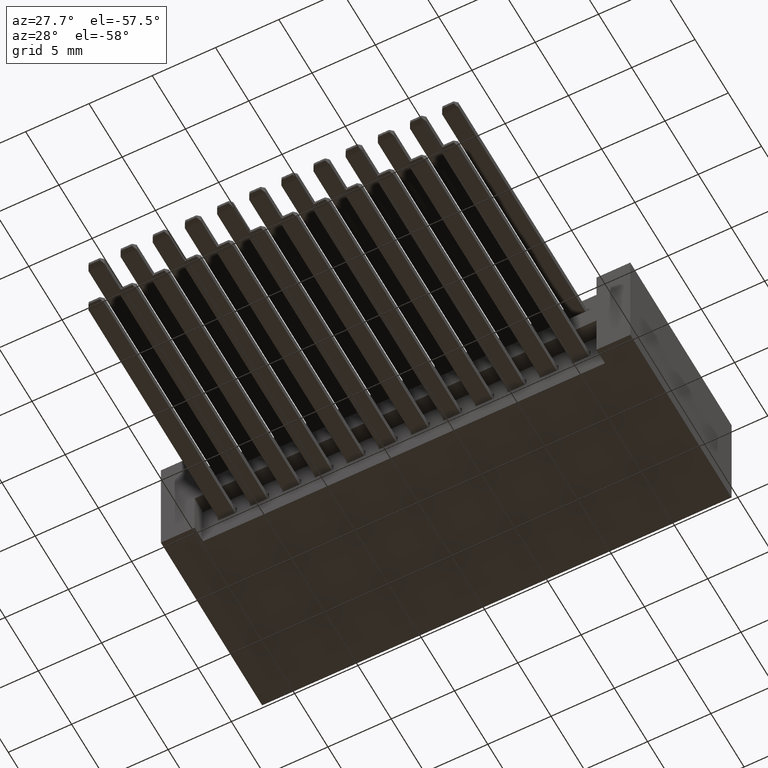
[diagram: clean part render]
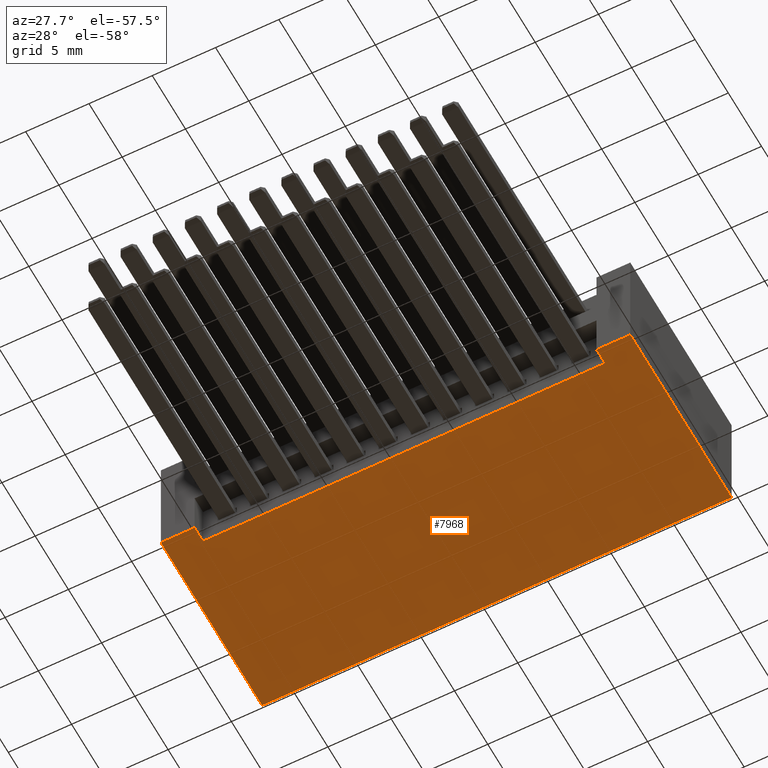
[diagram: same view with one face highlighted and labeled with its STEP entity id]
A machine part, auxiliary view. The second image highlights one B-rep face of the part: STEP entity #7968.
In plain terms, the highlighted planar face has unit normal (-0, 0, 1).
Its self-contained STEP definition (entity closure, byte-faithful):
#438 = CARTESIAN_POINT ( 'NONE',  ( 0.0000000000000000000, 0.0000000000000000000, -0.3700000000000001600 ) ) ;
#539 = VERTEX_POINT ( 'NONE', #1667 ) ;
#724 = LINE ( 'NONE', #438, #8755 ) ;
#788 = ORIENTED_EDGE ( 'NONE', *, *, #8209, .T. ) ;
#907 = ORIENTED_EDGE ( 'NONE', *, *, #8014, .T. ) ;
#1381 = LINE ( 'NONE', #12403, #9347 ) ;
#1455 = VECTOR ( 'NONE', #8415, 39.37007874015748100 ) ;
#1667 = CARTESIAN_POINT ( 'NONE',  ( 1.747500000000000100, 0.5999999999999999800, -0.3699999999999998300 ) ) ;
#1689 = CARTESIAN_POINT ( 'NONE',  ( 1.747500000000000100, 0.0000000000000000000, -0.3699999999999998300 ) ) ;
#2151 = ORIENTED_EDGE ( 'NONE', *, *, #6065, .F. ) ;
#2560 = EDGE_CURVE ( 'NONE', #8133, #539, #7361, .T. ) ;
#2606 = EDGE_CURVE ( 'NONE', #10194, #3669, #6374, .T. ) ;
#2709 = LINE ( 'NONE', #4903, #5183 ) ;
#2751 = CARTESIAN_POINT ( 'NONE',  ( 0.3924999999999996800, 0.05000000000000000300, -0.3700000000000000000 ) ) ;
#2803 = VECTOR ( 'NONE', #5422, 39.37007874015748100 ) ;
#3326 = VERTEX_POINT ( 'NONE', #3843 ) ;
#3437 = CARTESIAN_POINT ( 'NONE',  ( 0.3924999999999996800, 0.0000000000000000000, -0.3700000000000000000 ) ) ;
#3527 = DIRECTION ( 'NONE',  ( 1.000000000000000000, 0.0000000000000000000, 6.712157232590328600E-017 ) ) ;
#3528 = VECTOR ( 'NONE', #4566, 39.37007874015748100 ) ;
#3669 = VERTEX_POINT ( 'NONE', #6936 ) ;
#3843 = CARTESIAN_POINT ( 'NONE',  ( 1.642500000000000100, 0.0000000000000000000, -0.3700000000000000000 ) ) ;
#4241 = AXIS2_PLACEMENT_3D ( 'NONE', #11521, #9744, #3527 ) ;
#4566 = DIRECTION ( 'NONE',  ( 1.000000000000000000, 0.0000000000000000000, 0.0000000000000000000 ) ) ;
#4575 = EDGE_CURVE ( 'NONE', #3669, #3326, #1381, .T. ) ;
#4903 = CARTESIAN_POINT ( 'NONE',  ( 0.2874999999999999800, 0.0000000000000000000, -0.3700000000000001600 ) ) ;
#5183 = VECTOR ( 'NONE', #8139, 39.37007874015748100 ) ;
#5251 = ORIENTED_EDGE ( 'NONE', *, *, #9728, .T. ) ;
#5422 = DIRECTION ( 'NONE',  ( -0.0000000000000000000, -1.000000000000000000, -0.0000000000000000000 ) ) ;
#5645 = LINE ( 'NONE', #7504, #2803 ) ;
#5844 = LINE ( 'NONE', #6093, #8305 ) ;
#5895 = EDGE_LOOP ( 'NONE', ( #2151, #9988, #788, #6150, #6907, #5251, #907, #5974 ) ) ;
#5967 = VERTEX_POINT ( 'NONE', #12099 ) ;
#5974 = ORIENTED_EDGE ( 'NONE', *, *, #10255, .T. ) ;
#6065 = EDGE_CURVE ( 'NONE', #539, #12333, #12456, .T. ) ;
#6093 = CARTESIAN_POINT ( 'NONE',  ( 0.0000000000000000000, 0.0000000000000000000, -0.3700000000000001600 ) ) ;
#6150 = ORIENTED_EDGE ( 'NONE', *, *, #4575, .F. ) ;
#6203 = CARTESIAN_POINT ( 'NONE',  ( 0.2874999999999999800, 0.5999999999999999800, -0.3700000000000001600 ) ) ;
#6374 = LINE ( 'NONE', #10879, #3528 ) ;
#6907 = ORIENTED_EDGE ( 'NONE', *, *, #2606, .F. ) ;
#6936 = CARTESIAN_POINT ( 'NONE',  ( 1.642500000000000100, 0.05000000000000000300, -0.3700000000000000000 ) ) ;
#7361 = LINE ( 'NONE', #8545, #9400 ) ;
#7504 = CARTESIAN_POINT ( 'NONE',  ( 0.3924999999999996800, 0.05000000000000000300, -0.3700000000000000000 ) ) ;
#7822 = DIRECTION ( 'NONE',  ( -1.000000000000000000, -0.0000000000000000000, -6.712157232590327400E-017 ) ) ;
#7933 = VERTEX_POINT ( 'NONE', #3437 ) ;
#7968 = ADVANCED_FACE ( 'NONE', ( #9040 ), #8765, .F. ) ;
#8014 = EDGE_CURVE ( 'NONE', #7933, #5967, #724, .T. ) ;
#8133 = VERTEX_POINT ( 'NONE', #1689 ) ;
#8139 = DIRECTION ( 'NONE',  ( -0.0000000000000000000, 1.000000000000000000, -0.0000000000000000000 ) ) ;
#8209 = EDGE_CURVE ( 'NONE', #8133, #3326, #5844, .T. ) ;
#8305 = VECTOR ( 'NONE', #11022, 39.37007874015748100 ) ;
#8415 = DIRECTION ( 'NONE',  ( -1.000000000000000000, -0.0000000000000000000, -6.712157232590327400E-017 ) ) ;
#8545 = CARTESIAN_POINT ( 'NONE',  ( 1.747500000000000100, 0.0000000000000000000, -0.3699999999999998300 ) ) ;
#8755 = VECTOR ( 'NONE', #7822, 39.37007874015748100 ) ;
#8765 = PLANE ( 'NONE',  #4241 ) ;
#9040 = FACE_OUTER_BOUND ( 'NONE', #5895, .T. ) ;
#9347 = VECTOR ( 'NONE', #11598, 39.37007874015748100 ) ;
#9400 = VECTOR ( 'NONE', #11324, 39.37007874015748100 ) ;
#9728 = EDGE_CURVE ( 'NONE', #10194, #7933, #5645, .T. ) ;
#9744 = DIRECTION ( 'NONE',  ( -6.712157232590328600E-017, 0.0000000000000000000, 1.000000000000000000 ) ) ;
#9988 = ORIENTED_EDGE ( 'NONE', *, *, #2560, .F. ) ;
#10194 = VERTEX_POINT ( 'NONE', #2751 ) ;
#10255 = EDGE_CURVE ( 'NONE', #5967, #12333, #2709, .T. ) ;
#10879 = CARTESIAN_POINT ( 'NONE',  ( 0.3924999999999996800, 0.05000000000000000300, -0.3700000000000000000 ) ) ;
#11022 = DIRECTION ( 'NONE',  ( -1.000000000000000000, -0.0000000000000000000, -6.712157232590327400E-017 ) ) ;
#11324 = DIRECTION ( 'NONE',  ( -0.0000000000000000000, 1.000000000000000000, -0.0000000000000000000 ) ) ;
#11521 = CARTESIAN_POINT ( 'NONE',  ( 0.0000000000000000000, 0.5999999999999999800, -0.3700000000000001600 ) ) ;
#11598 = DIRECTION ( 'NONE',  ( -0.0000000000000000000, -1.000000000000000000, -0.0000000000000000000 ) ) ;
#11705 = CARTESIAN_POINT ( 'NONE',  ( 0.0000000000000000000, 0.5999999999999999800, -0.3700000000000001600 ) ) ;
#12099 = CARTESIAN_POINT ( 'NONE',  ( 0.2874999999999999800, 0.0000000000000000000, -0.3700000000000001600 ) ) ;
#12333 = VERTEX_POINT ( 'NONE', #6203 ) ;
#12403 = CARTESIAN_POINT ( 'NONE',  ( 1.642500000000000100, 0.05000000000000000300, -0.3700000000000000000 ) ) ;
#12456 = LINE ( 'NONE', #11705, #1455 ) ;